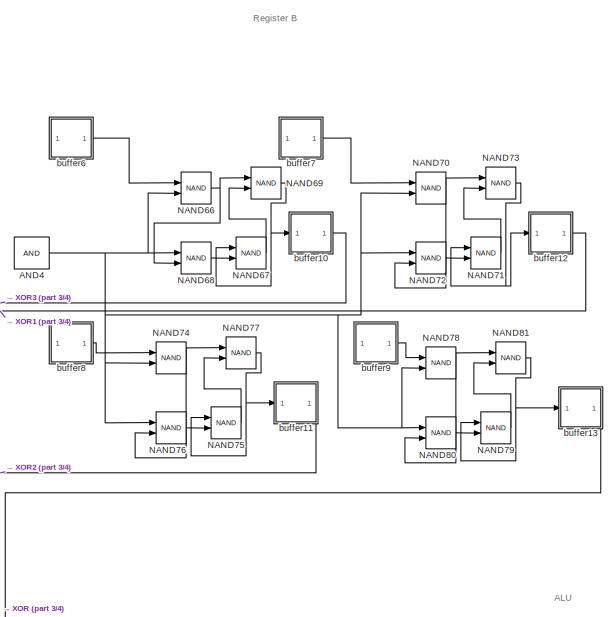
[diagram: root canvas - part 1/4, top right region]
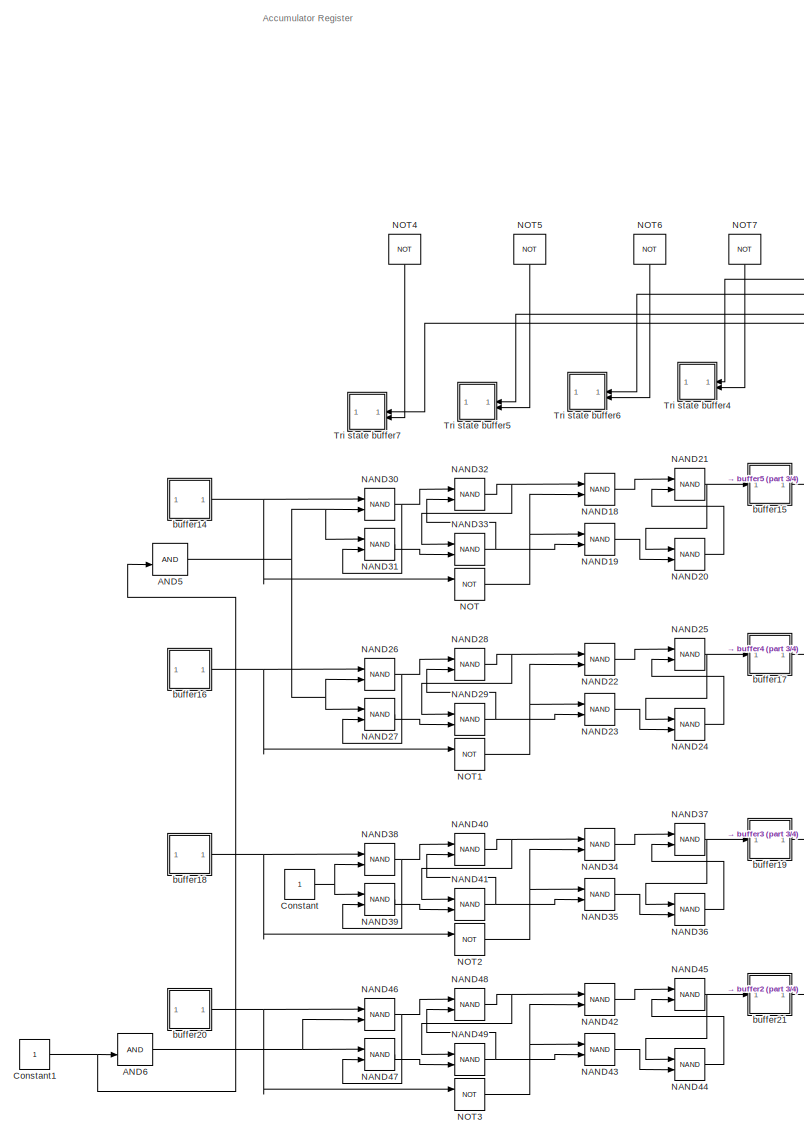
[diagram: root canvas - part 2/4, middle left region]
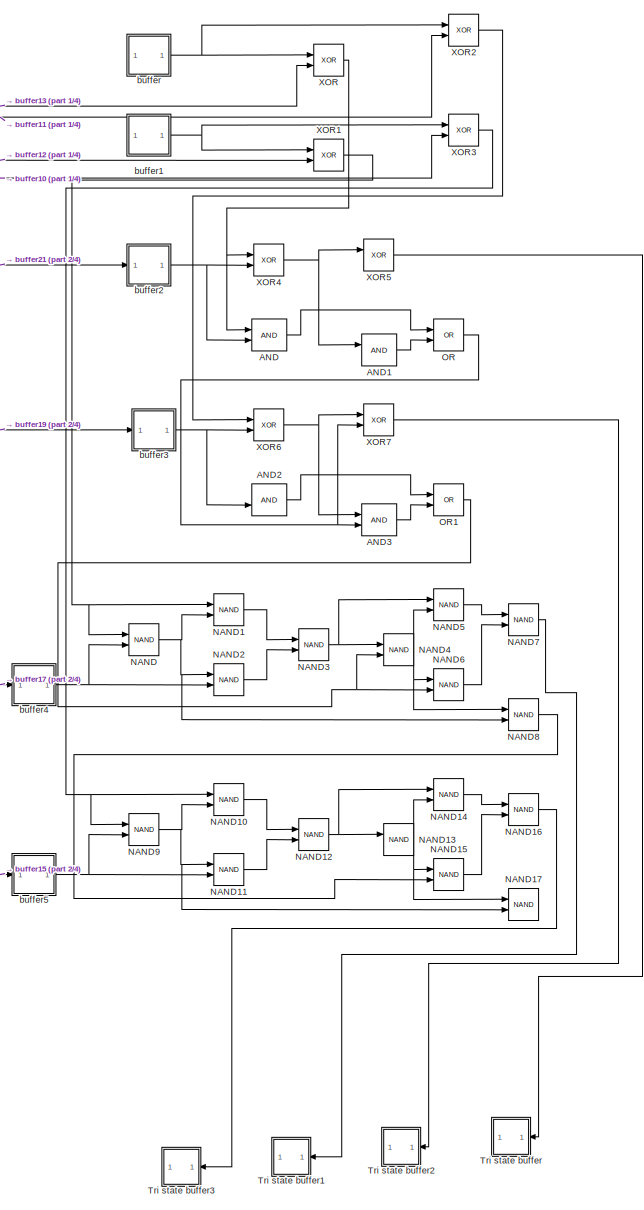
[diagram: root canvas - part 3/4, bottom right region]
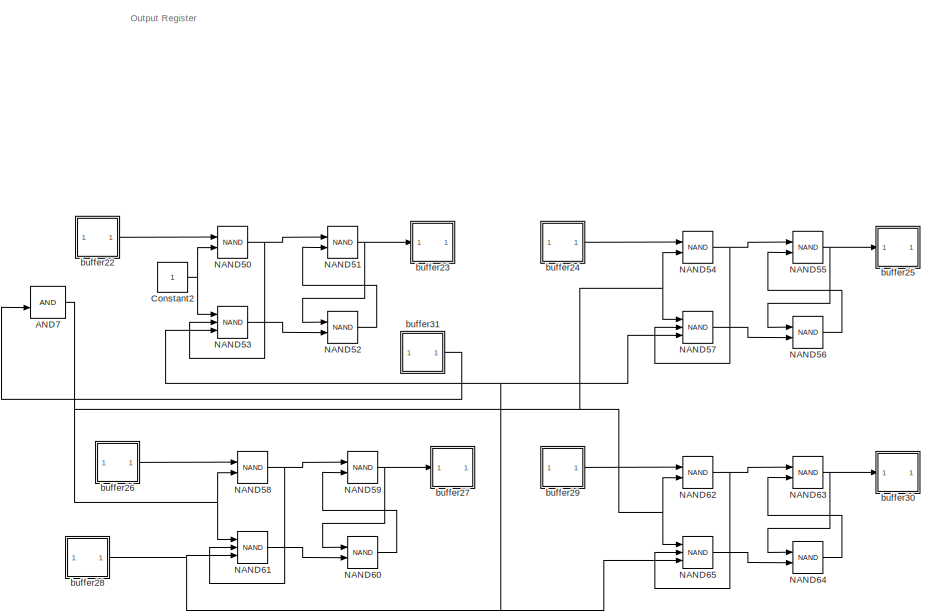
[diagram: root canvas - part 4/4, bottom left region]
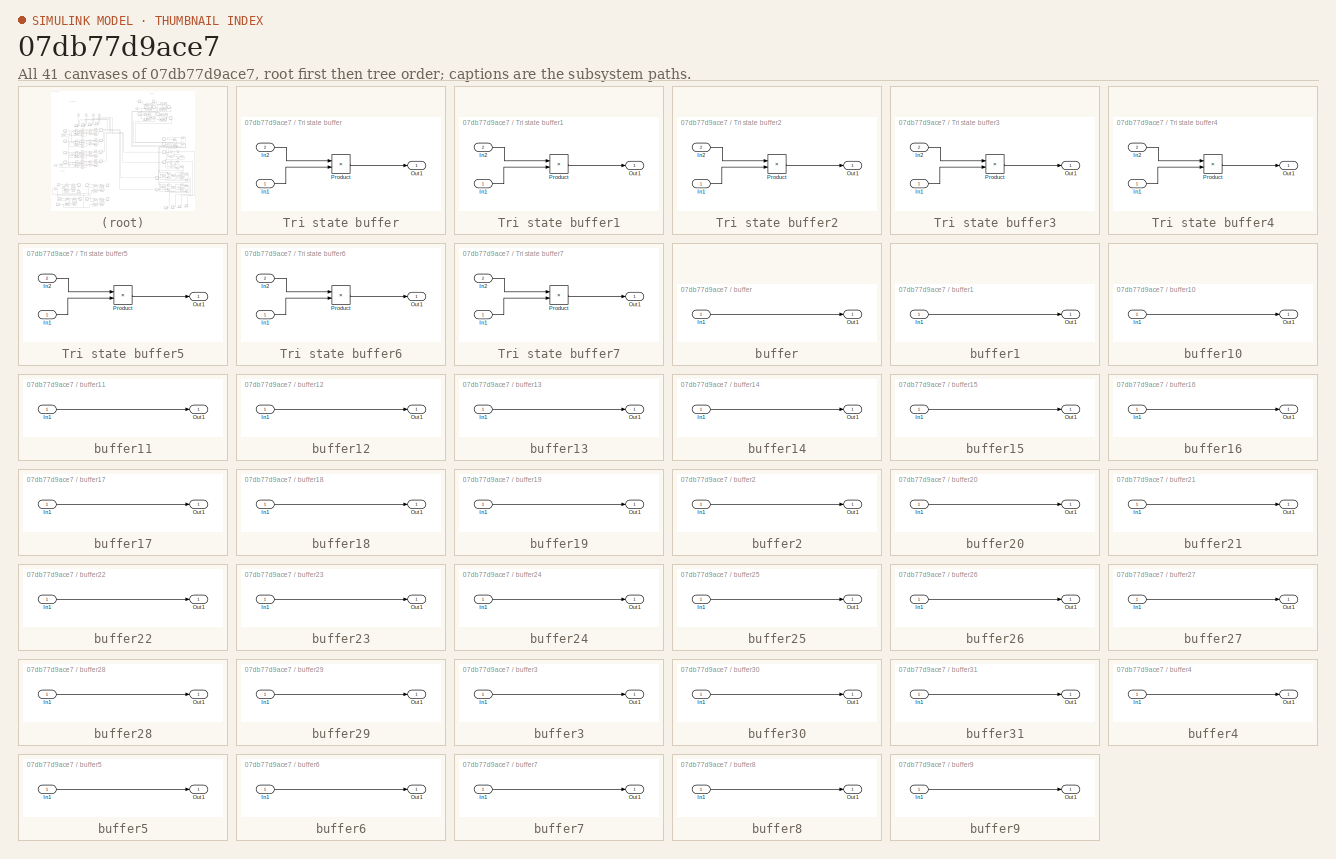
[diagram: thumbnail index - all 41 canvases of the model, root first then tree order]
MODEL slx_07db77d9ace7
KIND model
CONFIG AbsTol = auto
CONFIG EnableMultiTasking = off
CONFIG FixedStep = auto
CONFIG MaxStep = auto
CONFIG MinStep = auto
CONFIG RelTol = 1e-3
CONFIG SampleTimeConstraint = Unconstrained
CONFIG SolverName = VariableStepAuto
CONFIG StartTime = 0.0
CONFIG StopTime = 10.0
BLOCK [Logic] AND
  AllPortsSameDT = off
  IconShape = distinctive
  OutDataTypeStr = boolean
BLOCK [Logic] AND1
  AllPortsSameDT = off
  IconShape = distinctive
  OutDataTypeStr = boolean
BLOCK [Logic] AND2
  AllPortsSameDT = off
  IconShape = distinctive
  OutDataTypeStr = boolean
BLOCK [Logic] AND3
  AllPortsSameDT = off
  IconShape = distinctive
  OutDataTypeStr = boolean
BLOCK [Logic] AND4
  AllPortsSameDT = off
  IconShape = distinctive
  OutDataTypeStr = boolean
BLOCK [Logic] AND5
  AllPortsSameDT = off
  IconShape = distinctive
  OutDataTypeStr = boolean
BLOCK [Logic] AND6
  AllPortsSameDT = off
  IconShape = distinctive
  OutDataTypeStr = boolean
BLOCK [Logic] AND7
  AllPortsSameDT = off
  IconShape = distinctive
  OutDataTypeStr = boolean
BLOCK [Constant] Constant
BLOCK [Constant] Constant1
BLOCK [Constant] Constant2
BLOCK [Logic] NAND
  AllPortsSameDT = off
  IconShape = distinctive
  Operator = NAND
  OutDataTypeStr = boolean
BLOCK [Logic] NAND1
  AllPortsSameDT = off
  IconShape = distinctive
  Operator = NAND
  OutDataTypeStr = boolean
BLOCK [Logic] NAND10
  AllPortsSameDT = off
  IconShape = distinctive
  Operator = NAND
  OutDataTypeStr = boolean
BLOCK [Logic] NAND11
  AllPortsSameDT = off
  IconShape = distinctive
  Operator = NAND
  OutDataTypeStr = boolean
BLOCK [Logic] NAND12
  AllPortsSameDT = off
  IconShape = distinctive
  Operator = NAND
  OutDataTypeStr = boolean
BLOCK [Logic] NAND13
  AllPortsSameDT = off
  IconShape = distinctive
  Operator = NAND
  OutDataTypeStr = boolean
BLOCK [Logic] NAND14
  AllPortsSameDT = off
  IconShape = distinctive
  Operator = NAND
  OutDataTypeStr = boolean
BLOCK [Logic] NAND15
  AllPortsSameDT = off
  IconShape = distinctive
  Operator = NAND
  OutDataTypeStr = boolean
BLOCK [Logic] NAND16
  AllPortsSameDT = off
  IconShape = distinctive
  Operator = NAND
  OutDataTypeStr = boolean
BLOCK [Logic] NAND17
  AllPortsSameDT = off
  IconShape = distinctive
  Operator = NAND
  OutDataTypeStr = boolean
BLOCK [Logic] NAND18
  AllPortsSameDT = off
  IconShape = distinctive
  Operator = NAND
  OutDataTypeStr = boolean
BLOCK [Logic] NAND19
  AllPortsSameDT = off
  IconShape = distinctive
  Operator = NAND
  OutDataTypeStr = boolean
BLOCK [Logic] NAND2
  AllPortsSameDT = off
  IconShape = distinctive
  Operator = NAND
  OutDataTypeStr = boolean
BLOCK [Logic] NAND20
  AllPortsSameDT = off
  IconShape = distinctive
  Operator = NAND
  OutDataTypeStr = boolean
BLOCK [Logic] NAND21
  AllPortsSameDT = off
  IconShape = distinctive
  Operator = NAND
  OutDataTypeStr = boolean
BLOCK [Logic] NAND22
  AllPortsSameDT = off
  IconShape = distinctive
  Operator = NAND
  OutDataTypeStr = boolean
BLOCK [Logic] NAND23
  AllPortsSameDT = off
  IconShape = distinctive
  Operator = NAND
  OutDataTypeStr = boolean
BLOCK [Logic] NAND24
  AllPortsSameDT = off
  IconShape = distinctive
  Operator = NAND
  OutDataTypeStr = boolean
BLOCK [Logic] NAND25
  AllPortsSameDT = off
  IconShape = distinctive
  Operator = NAND
  OutDataTypeStr = boolean
BLOCK [Logic] NAND26
  AllPortsSameDT = off
  IconShape = distinctive
  Operator = NAND
  OutDataTypeStr = boolean
BLOCK [Logic] NAND27
  AllPortsSameDT = off
  IconShape = distinctive
  Operator = NAND
  OutDataTypeStr = boolean
BLOCK [Logic] NAND28
  AllPortsSameDT = off
  IconShape = distinctive
  Operator = NAND
  OutDataTypeStr = boolean
BLOCK [Logic] NAND29
  AllPortsSameDT = off
  IconShape = distinctive
  Operator = NAND
  OutDataTypeStr = boolean
BLOCK [Logic] NAND3
  AllPortsSameDT = off
  IconShape = distinctive
  Operator = NAND
  OutDataTypeStr = boolean
BLOCK [Logic] NAND30
  AllPortsSameDT = off
  IconShape = distinctive
  Operator = NAND
  OutDataTypeStr = boolean
BLOCK [Logic] NAND31
  AllPortsSameDT = off
  IconShape = distinctive
  Operator = NAND
  OutDataTypeStr = boolean
BLOCK [Logic] NAND32
  AllPortsSameDT = off
  IconShape = distinctive
  Operator = NAND
  OutDataTypeStr = boolean
BLOCK [Logic] NAND33
  AllPortsSameDT = off
  IconShape = distinctive
  Operator = NAND
  OutDataTypeStr = boolean
BLOCK [Logic] NAND34
  AllPortsSameDT = off
  IconShape = distinctive
  Operator = NAND
  OutDataTypeStr = boolean
BLOCK [Logic] NAND35
  AllPortsSameDT = off
  IconShape = distinctive
  Operator = NAND
  OutDataTypeStr = boolean
BLOCK [Logic] NAND36
  AllPortsSameDT = off
  IconShape = distinctive
  Operator = NAND
  OutDataTypeStr = boolean
BLOCK [Logic] NAND37
  AllPortsSameDT = off
  IconShape = distinctive
  Operator = NAND
  OutDataTypeStr = boolean
BLOCK [Logic] NAND38
  AllPortsSameDT = off
  IconShape = distinctive
  Operator = NAND
  OutDataTypeStr = boolean
BLOCK [Logic] NAND39
  AllPortsSameDT = off
  IconShape = distinctive
  Operator = NAND
  OutDataTypeStr = boolean
BLOCK [Logic] NAND4
  AllPortsSameDT = off
  IconShape = distinctive
  Operator = NAND
  OutDataTypeStr = boolean
BLOCK [Logic] NAND40
  AllPortsSameDT = off
  IconShape = distinctive
  Operator = NAND
  OutDataTypeStr = boolean
BLOCK [Logic] NAND41
  AllPortsSameDT = off
  IconShape = distinctive
  Operator = NAND
  OutDataTypeStr = boolean
BLOCK [Logic] NAND42
  AllPortsSameDT = off
  IconShape = distinctive
  Operator = NAND
  OutDataTypeStr = boolean
BLOCK [Logic] NAND43
  AllPortsSameDT = off
  IconShape = distinctive
  Operator = NAND
  OutDataTypeStr = boolean
BLOCK [Logic] NAND44
  AllPortsSameDT = off
  IconShape = distinctive
  Operator = NAND
  OutDataTypeStr = boolean
BLOCK [Logic] NAND45
  AllPortsSameDT = off
  IconShape = distinctive
  Operator = NAND
  OutDataTypeStr = boolean
BLOCK [Logic] NAND46
  AllPortsSameDT = off
  IconShape = distinctive
  Operator = NAND
  OutDataTypeStr = boolean
BLOCK [Logic] NAND47
  AllPortsSameDT = off
  IconShape = distinctive
  Operator = NAND
  OutDataTypeStr = boolean
BLOCK [Logic] NAND48
  AllPortsSameDT = off
  IconShape = distinctive
  Operator = NAND
  OutDataTypeStr = boolean
BLOCK [Logic] NAND49
  AllPortsSameDT = off
  IconShape = distinctive
  Operator = NAND
  OutDataTypeStr = boolean
BLOCK [Logic] NAND5
  AllPortsSameDT = off
  IconShape = distinctive
  Operator = NAND
  OutDataTypeStr = boolean
BLOCK [Logic] NAND50
  AllPortsSameDT = off
  IconShape = distinctive
  Operator = NAND
  OutDataTypeStr = boolean
BLOCK [Logic] NAND51
  AllPortsSameDT = off
  IconShape = distinctive
  Operator = NAND
  OutDataTypeStr = boolean
BLOCK [Logic] NAND52
  AllPortsSameDT = off
  IconShape = distinctive
  Operator = NAND
  OutDataTypeStr = boolean
BLOCK [Logic] NAND53
  AllPortsSameDT = off
  IconShape = distinctive
  Inputs = 3
  Operator = NAND
  OutDataTypeStr = boolean
BLOCK [Logic] NAND54
  AllPortsSameDT = off
  IconShape = distinctive
  Operator = NAND
  OutDataTypeStr = boolean
BLOCK [Logic] NAND55
  AllPortsSameDT = off
  IconShape = distinctive
  Operator = NAND
  OutDataTypeStr = boolean
BLOCK [Logic] NAND56
  AllPortsSameDT = off
  IconShape = distinctive
  Operator = NAND
  OutDataTypeStr = boolean
BLOCK [Logic] NAND57
  AllPortsSameDT = off
  IconShape = distinctive
  Inputs = 3
  Operator = NAND
  OutDataTypeStr = boolean
BLOCK [Logic] NAND58
  AllPortsSameDT = off
  IconShape = distinctive
  Operator = NAND
  OutDataTypeStr = boolean
BLOCK [Logic] NAND59
  AllPortsSameDT = off
  IconShape = distinctive
  Operator = NAND
  OutDataTypeStr = boolean
BLOCK [Logic] NAND6
  AllPortsSameDT = off
  IconShape = distinctive
  Operator = NAND
  OutDataTypeStr = boolean
BLOCK [Logic] NAND60
  AllPortsSameDT = off
  IconShape = distinctive
  Operator = NAND
  OutDataTypeStr = boolean
BLOCK [Logic] NAND61
  AllPortsSameDT = off
  IconShape = distinctive
  Inputs = 3
  Operator = NAND
  OutDataTypeStr = boolean
BLOCK [Logic] NAND62
  AllPortsSameDT = off
  IconShape = distinctive
  Operator = NAND
  OutDataTypeStr = boolean
BLOCK [Logic] NAND63
  AllPortsSameDT = off
  IconShape = distinctive
  Operator = NAND
  OutDataTypeStr = boolean
BLOCK [Logic] NAND64
  AllPortsSameDT = off
  IconShape = distinctive
  Operator = NAND
  OutDataTypeStr = boolean
BLOCK [Logic] NAND65
  AllPortsSameDT = off
  IconShape = distinctive
  Inputs = 3
  Operator = NAND
  OutDataTypeStr = boolean
BLOCK [Logic] NAND66
  AllPortsSameDT = off
  IconShape = distinctive
  Operator = NAND
  OutDataTypeStr = boolean
BLOCK [Logic] NAND67
  AllPortsSameDT = off
  IconShape = distinctive
  Operator = NAND
  OutDataTypeStr = boolean
BLOCK [Logic] NAND68
  AllPortsSameDT = off
  IconShape = distinctive
  Operator = NAND
  OutDataTypeStr = boolean
BLOCK [Logic] NAND69
  AllPortsSameDT = off
  IconShape = distinctive
  Operator = NAND
  OutDataTypeStr = boolean
BLOCK [Logic] NAND7
  AllPortsSameDT = off
  IconShape = distinctive
  Operator = NAND
  OutDataTypeStr = boolean
BLOCK [Logic] NAND70
  AllPortsSameDT = off
  IconShape = distinctive
  Operator = NAND
  OutDataTypeStr = boolean
BLOCK [Logic] NAND71
  AllPortsSameDT = off
  IconShape = distinctive
  Operator = NAND
  OutDataTypeStr = boolean
BLOCK [Logic] NAND72
  AllPortsSameDT = off
  IconShape = distinctive
  Operator = NAND
  OutDataTypeStr = boolean
BLOCK [Logic] NAND73
  AllPortsSameDT = off
  IconShape = distinctive
  Operator = NAND
  OutDataTypeStr = boolean
BLOCK [Logic] NAND74
  AllPortsSameDT = off
  IconShape = distinctive
  Operator = NAND
  OutDataTypeStr = boolean
BLOCK [Logic] NAND75
  AllPortsSameDT = off
  IconShape = distinctive
  Operator = NAND
  OutDataTypeStr = boolean
BLOCK [Logic] NAND76
  AllPortsSameDT = off
  IconShape = distinctive
  Operator = NAND
  OutDataTypeStr = boolean
BLOCK [Logic] NAND77
  AllPortsSameDT = off
  IconShape = distinctive
  Operator = NAND
  OutDataTypeStr = boolean
BLOCK [Logic] NAND78
  AllPortsSameDT = off
  IconShape = distinctive
  Operator = NAND
  OutDataTypeStr = boolean
BLOCK [Logic] NAND79
  AllPortsSameDT = off
  IconShape = distinctive
  Operator = NAND
  OutDataTypeStr = boolean
BLOCK [Logic] NAND8
  AllPortsSameDT = off
  IconShape = distinctive
  Operator = NAND
  OutDataTypeStr = boolean
BLOCK [Logic] NAND80
  AllPortsSameDT = off
  IconShape = distinctive
  Operator = NAND
  OutDataTypeStr = boolean
BLOCK [Logic] NAND81
  AllPortsSameDT = off
  IconShape = distinctive
  Operator = NAND
  OutDataTypeStr = boolean
BLOCK [Logic] NAND9
  AllPortsSameDT = off
  IconShape = distinctive
  Operator = NAND
  OutDataTypeStr = boolean
BLOCK [Logic] NOT
  AllPortsSameDT = off
  IconShape = distinctive
  Operator = NOT
  OutDataTypeStr = boolean
BLOCK [Logic] NOT1
  AllPortsSameDT = off
  IconShape = distinctive
  Operator = NOT
  OutDataTypeStr = boolean
BLOCK [Logic] NOT2
  AllPortsSameDT = off
  IconShape = distinctive
  Operator = NOT
  OutDataTypeStr = boolean
BLOCK [Logic] NOT3
  AllPortsSameDT = off
  IconShape = distinctive
  Operator = NOT
  OutDataTypeStr = boolean
BLOCK [Logic] NOT4
  AllPortsSameDT = off
  IconShape = distinctive
  NameLocation = left
  Operator = NOT
  OutDataTypeStr = boolean
BLOCK [Logic] NOT5
  AllPortsSameDT = off
  IconShape = distinctive
  NameLocation = left
  Operator = NOT
  OutDataTypeStr = boolean
BLOCK [Logic] NOT6
  AllPortsSameDT = off
  IconShape = distinctive
  NameLocation = left
  Operator = NOT
  OutDataTypeStr = boolean
BLOCK [Logic] NOT7
  AllPortsSameDT = off
  IconShape = distinctive
  NameLocation = left
  Operator = NOT
  OutDataTypeStr = boolean
BLOCK [Logic] OR
  AllPortsSameDT = off
  IconShape = distinctive
  Operator = OR
  OutDataTypeStr = boolean
BLOCK [Logic] OR1
  AllPortsSameDT = off
  IconShape = distinctive
  Operator = OR
  OutDataTypeStr = boolean
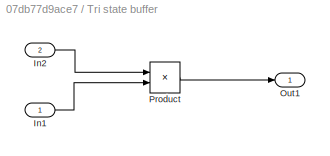
BLOCK [SubSystem] Tri state buffer
  NameLocation = top
BLOCK [Inport] Tri state buffer/In1
BLOCK [Inport] Tri state buffer/In2
  Port = 2
BLOCK [Outport] Tri state buffer/Out1
BLOCK [Product] Tri state buffer/Product
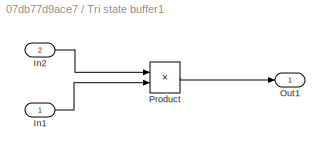
BLOCK [SubSystem] Tri state buffer1
  NameLocation = top
BLOCK [Inport] Tri state buffer1/In1
BLOCK [Inport] Tri state buffer1/In2
  Port = 2
BLOCK [Outport] Tri state buffer1/Out1
BLOCK [Product] Tri state buffer1/Product
BLOCK [SubSystem] Tri state buffer2
  NameLocation = top
BLOCK [Inport] Tri state buffer2/In1
BLOCK [Inport] Tri state buffer2/In2
  Port = 2
BLOCK [Outport] Tri state buffer2/Out1
BLOCK [Product] Tri state buffer2/Product
BLOCK [SubSystem] Tri state buffer3
  NameLocation = top
BLOCK [Inport] Tri state buffer3/In1
BLOCK [Inport] Tri state buffer3/In2
  Port = 2
BLOCK [Outport] Tri state buffer3/Out1
BLOCK [Product] Tri state buffer3/Product
BLOCK [SubSystem] Tri state buffer4
  NameLocation = top
BLOCK [Inport] Tri state buffer4/In1
BLOCK [Inport] Tri state buffer4/In2
  Port = 2
BLOCK [Outport] Tri state buffer4/Out1
BLOCK [Product] Tri state buffer4/Product
BLOCK [SubSystem] Tri state buffer5
  NameLocation = top
BLOCK [Inport] Tri state buffer5/In1
BLOCK [Inport] Tri state buffer5/In2
  Port = 2
BLOCK [Outport] Tri state buffer5/Out1
BLOCK [Product] Tri state buffer5/Product
BLOCK [SubSystem] Tri state buffer6
  NameLocation = top
BLOCK [Inport] Tri state buffer6/In1
BLOCK [Inport] Tri state buffer6/In2
  Port = 2
BLOCK [Outport] Tri state buffer6/Out1
BLOCK [Product] Tri state buffer6/Product
BLOCK [SubSystem] Tri state buffer7
  NameLocation = top
BLOCK [Inport] Tri state buffer7/In1
BLOCK [Inport] Tri state buffer7/In2
  Port = 2
BLOCK [Outport] Tri state buffer7/Out1
BLOCK [Product] Tri state buffer7/Product
BLOCK [Logic] XOR
  AllPortsSameDT = off
  IconShape = distinctive
  Operator = XOR
  OutDataTypeStr = boolean
BLOCK [Logic] XOR1
  AllPortsSameDT = off
  IconShape = distinctive
  Operator = XOR
  OutDataTypeStr = boolean
BLOCK [Logic] XOR2
  AllPortsSameDT = off
  IconShape = distinctive
  Operator = XOR
  OutDataTypeStr = boolean
BLOCK [Logic] XOR3
  AllPortsSameDT = off
  IconShape = distinctive
  Operator = XOR
  OutDataTypeStr = boolean
BLOCK [Logic] XOR4
  AllPortsSameDT = off
  IconShape = distinctive
  Operator = XOR
  OutDataTypeStr = boolean
BLOCK [Logic] XOR5
  AllPortsSameDT = off
  IconShape = distinctive
  Operator = XOR
  OutDataTypeStr = boolean
BLOCK [Logic] XOR6
  AllPortsSameDT = off
  IconShape = distinctive
  Operator = XOR
  OutDataTypeStr = boolean
BLOCK [Logic] XOR7
  AllPortsSameDT = off
  IconShape = distinctive
  Operator = XOR
  OutDataTypeStr = boolean
BLOCK [SubSystem] buffer
BLOCK [Inport] buffer/In1
BLOCK [Outport] buffer/Out1
BLOCK [SubSystem] buffer1
BLOCK [Inport] buffer1/In1
BLOCK [Outport] buffer1/Out1
BLOCK [SubSystem] buffer10
BLOCK [Inport] buffer10/In1
BLOCK [Outport] buffer10/Out1
BLOCK [SubSystem] buffer11
BLOCK [Inport] buffer11/In1
BLOCK [Outport] buffer11/Out1
BLOCK [SubSystem] buffer12
BLOCK [Inport] buffer12/In1
BLOCK [Outport] buffer12/Out1
BLOCK [SubSystem] buffer13
BLOCK [Inport] buffer13/In1
BLOCK [Outport] buffer13/Out1
BLOCK [SubSystem] buffer14
BLOCK [Inport] buffer14/In1
BLOCK [Outport] buffer14/Out1
BLOCK [SubSystem] buffer15
BLOCK [Inport] buffer15/In1
BLOCK [Outport] buffer15/Out1
BLOCK [SubSystem] buffer16
BLOCK [Inport] buffer16/In1
BLOCK [Outport] buffer16/Out1
BLOCK [SubSystem] buffer17
BLOCK [Inport] buffer17/In1
BLOCK [Outport] buffer17/Out1
BLOCK [SubSystem] buffer18
BLOCK [Inport] buffer18/In1
BLOCK [Outport] buffer18/Out1
BLOCK [SubSystem] buffer19
BLOCK [Inport] buffer19/In1
BLOCK [Outport] buffer19/Out1
BLOCK [SubSystem] buffer2
BLOCK [Inport] buffer2/In1
BLOCK [Outport] buffer2/Out1
BLOCK [SubSystem] buffer20
BLOCK [Inport] buffer20/In1
BLOCK [Outport] buffer20/Out1
BLOCK [SubSystem] buffer21
BLOCK [Inport] buffer21/In1
BLOCK [Outport] buffer21/Out1
BLOCK [SubSystem] buffer22
BLOCK [Inport] buffer22/In1
BLOCK [Outport] buffer22/Out1
BLOCK [SubSystem] buffer23
BLOCK [Inport] buffer23/In1
BLOCK [Outport] buffer23/Out1
BLOCK [SubSystem] buffer24
BLOCK [Inport] buffer24/In1
BLOCK [Outport] buffer24/Out1
BLOCK [SubSystem] buffer25
BLOCK [Inport] buffer25/In1
BLOCK [Outport] buffer25/Out1
BLOCK [SubSystem] buffer26
BLOCK [Inport] buffer26/In1
BLOCK [Outport] buffer26/Out1
BLOCK [SubSystem] buffer27
BLOCK [Inport] buffer27/In1
BLOCK [Outport] buffer27/Out1
BLOCK [SubSystem] buffer28
BLOCK [Inport] buffer28/In1
BLOCK [Outport] buffer28/Out1
BLOCK [SubSystem] buffer29
BLOCK [Inport] buffer29/In1
BLOCK [Outport] buffer29/Out1
BLOCK [SubSystem] buffer3
BLOCK [Inport] buffer3/In1
BLOCK [Outport] buffer3/Out1
BLOCK [SubSystem] buffer30
BLOCK [Inport] buffer30/In1
BLOCK [Outport] buffer30/Out1
BLOCK [SubSystem] buffer31
BLOCK [Inport] buffer31/In1
BLOCK [Outport] buffer31/Out1
BLOCK [SubSystem] buffer4
BLOCK [Inport] buffer4/In1
BLOCK [Outport] buffer4/Out1
BLOCK [SubSystem] buffer5
BLOCK [Inport] buffer5/In1
BLOCK [Outport] buffer5/Out1
BLOCK [SubSystem] buffer6
BLOCK [Inport] buffer6/In1
BLOCK [Outport] buffer6/Out1
BLOCK [SubSystem] buffer7
BLOCK [Inport] buffer7/In1
BLOCK [Outport] buffer7/Out1
BLOCK [SubSystem] buffer8
BLOCK [Inport] buffer8/In1
BLOCK [Outport] buffer8/Out1
BLOCK [SubSystem] buffer9
BLOCK [Inport] buffer9/In1
BLOCK [Outport] buffer9/Out1
ANNOTATION (root): ALU
ANNOTATION (root): Accumulator Register
ANNOTATION (root): Output Register
ANNOTATION (root): Register B
LINE AND1:1 -> OR:2
LINE AND2:1 -> OR1:1
LINE AND3:1 -> OR1:2
NET AND4:1 -> NAND66:2, NAND68:1, NAND70:2, NAND72:1, NAND74:2, NAND76:1, NAND78:2, NAND80:1
NET AND5:1 -> NAND26:2, NAND27:1, NAND30:2, NAND31:1
NET AND6:1 -> NAND46:2, NAND47:1
NET AND7:1 -> NAND54:2, NAND57:1, NAND58:2, NAND61:1, NAND62:2, NAND65:1
LINE AND:1 -> OR:1
NET Constant1:1 -> AND5:2, AND6:2
NET Constant2:1 -> NAND50:2, NAND53:1
NET Constant:1 -> NAND38:2, NAND39:1
LINE NAND10:1 -> NAND12:1
LINE NAND11:1 -> NAND12:2
NET NAND12:1 -> NAND13:1, NAND14:1
NET NAND13:1 -> NAND14:2, NAND15:1, NAND17:1
LINE NAND14:1 -> NAND16:1
LINE NAND15:1 -> NAND16:2
LINE NAND16:1 -> Tri state buffer3:1
LINE NAND18:1 -> NAND21:1
LINE NAND19:1 -> NAND20:2
LINE NAND1:1 -> NAND3:1
LINE NAND20:1 -> NAND21:2
NET NAND21:1 -> NAND20:1, buffer15:1
LINE NAND22:1 -> NAND25:1
LINE NAND23:1 -> NAND24:2
LINE NAND24:1 -> NAND25:2
NET NAND25:1 -> NAND24:1, buffer17:1
NET NAND26:1 -> NAND27:2, NAND28:1
LINE NAND27:1 -> NAND29:2
NET NAND28:1 -> NAND22:1, NAND29:1
NET NAND29:1 -> NAND23:2, NAND28:2
LINE NAND2:1 -> NAND3:2
NET NAND30:1 -> NAND31:2, NAND32:1
LINE NAND31:1 -> NAND33:2
NET NAND32:1 -> NAND18:1, NAND33:1
NET NAND33:1 -> NAND19:2, NAND32:2
LINE NAND34:1 -> NAND37:1
LINE NAND35:1 -> NAND36:2
LINE NAND36:1 -> NAND37:2
NET NAND37:1 -> NAND36:1, buffer19:1
NET NAND38:1 -> NAND39:2, NAND40:1
LINE NAND39:1 -> NAND41:2
NET NAND3:1 -> NAND4:1, NAND5:1
NET NAND40:1 -> NAND34:1, NAND41:1
NET NAND41:1 -> NAND35:2, NAND40:2
LINE NAND42:1 -> NAND45:1
LINE NAND43:1 -> NAND44:2
LINE NAND44:1 -> NAND45:2
NET NAND45:1 -> NAND44:1, buffer21:1
NET NAND46:1 -> NAND47:2, NAND48:1
LINE NAND47:1 -> NAND49:2
NET NAND48:1 -> NAND42:1, NAND49:1
NET NAND49:1 -> NAND43:2, NAND48:2
NET NAND4:1 -> NAND5:2, NAND6:1, NAND8:1
NET NAND50:1 -> NAND51:1, NAND53:2
NET NAND51:1 -> NAND52:1, buffer23:1
LINE NAND52:1 -> NAND51:2
LINE NAND53:1 -> NAND52:2
NET NAND54:1 -> NAND55:1, NAND57:2
NET NAND55:1 -> NAND56:1, buffer25:1
LINE NAND56:1 -> NAND55:2
LINE NAND57:1 -> NAND56:2
NET NAND58:1 -> NAND59:1, NAND61:2
NET NAND59:1 -> NAND60:1, buffer27:1
LINE NAND5:1 -> NAND7:1
LINE NAND60:1 -> NAND59:2
LINE NAND61:1 -> NAND60:2
NET NAND62:1 -> NAND63:1, NAND65:2
NET NAND63:1 -> NAND64:1, buffer30:1
LINE NAND64:1 -> NAND63:2
LINE NAND65:1 -> NAND64:2
NET NAND66:1 -> NAND68:2, NAND69:1
LINE NAND67:1 -> NAND69:2
LINE NAND68:1 -> NAND67:2
NET NAND69:1 -> NAND67:1, buffer10:1
LINE NAND6:1 -> NAND7:2
NET NAND70:1 -> NAND72:2, NAND73:1
LINE NAND71:1 -> NAND73:2
LINE NAND72:1 -> NAND71:2
NET NAND73:1 -> NAND71:1, buffer12:1
NET NAND74:1 -> NAND76:2, NAND77:1
LINE NAND75:1 -> NAND77:2
LINE NAND76:1 -> NAND75:2
NET NAND77:1 -> NAND75:1, buffer11:1
NET NAND78:1 -> NAND80:2, NAND81:1
LINE NAND79:1 -> NAND81:2
LINE NAND7:1 -> Tri state buffer1:1
LINE NAND80:1 -> NAND79:2
NET NAND81:1 -> NAND79:1, buffer13:1
LINE NAND8:1 -> NAND15:2
NET NAND9:1 -> NAND10:2, NAND11:1, NAND17:2
NET NAND:1 -> NAND1:2, NAND2:1, NAND8:2
NET NOT1:1 -> NAND22:2, NAND23:1
NET NOT2:1 -> NAND34:2, NAND35:1
NET NOT3:1 -> NAND42:2, NAND43:1
LINE NOT4:1 -> Tri state buffer7:2
LINE NOT5:1 -> Tri state buffer5:2
LINE NOT6:1 -> Tri state buffer6:2
LINE NOT7:1 -> Tri state buffer4:2
NET NOT:1 -> NAND18:2, NAND19:1
NET OR1:1 -> NAND4:2, NAND6:2
NET OR:1 -> AND3:2, XOR7:2
LINE Tri state buffer/In1:1 -> Tri state buffer/Product:2
LINE Tri state buffer/In2:1 -> Tri state buffer/Product:1
LINE Tri state buffer/Product:1 -> Tri state buffer/Out1:1
LINE Tri state buffer1/In1:1 -> Tri state buffer1/Product:2
LINE Tri state buffer1/In2:1 -> Tri state buffer1/Product:1
LINE Tri state buffer1/Product:1 -> Tri state buffer1/Out1:1
LINE Tri state buffer2/In1:1 -> Tri state buffer2/Product:2
LINE Tri state buffer2/In2:1 -> Tri state buffer2/Product:1
LINE Tri state buffer2/Product:1 -> Tri state buffer2/Out1:1
LINE Tri state buffer3/In1:1 -> Tri state buffer3/Product:2
LINE Tri state buffer3/In2:1 -> Tri state buffer3/Product:1
LINE Tri state buffer3/Product:1 -> Tri state buffer3/Out1:1
LINE Tri state buffer4/In1:1 -> Tri state buffer4/Product:2
LINE Tri state buffer4/In2:1 -> Tri state buffer4/Product:1
LINE Tri state buffer4/Product:1 -> Tri state buffer4/Out1:1
LINE Tri state buffer5/In1:1 -> Tri state buffer5/Product:2
LINE Tri state buffer5/In2:1 -> Tri state buffer5/Product:1
LINE Tri state buffer5/Product:1 -> Tri state buffer5/Out1:1
LINE Tri state buffer6/In1:1 -> Tri state buffer6/Product:2
LINE Tri state buffer6/In2:1 -> Tri state buffer6/Product:1
LINE Tri state buffer6/Product:1 -> Tri state buffer6/Out1:1
LINE Tri state buffer7/In1:1 -> Tri state buffer7/Product:2
LINE Tri state buffer7/In2:1 -> Tri state buffer7/Product:1
LINE Tri state buffer7/Product:1 -> Tri state buffer7/Out1:1
NET XOR1:1 -> NAND1:1, NAND:1
LINE XOR2:1 -> XOR6:1
NET XOR3:1 -> NAND10:1, NAND9:1
NET XOR4:1 -> AND1:1, XOR5:1
LINE XOR5:1 -> Tri state buffer:1
NET XOR6:1 -> AND3:1, XOR7:1
LINE XOR7:1 -> Tri state buffer2:1
NET XOR:1 -> AND:1, XOR4:1
LINE buffer/In1:1 -> buffer/Out1:1
LINE buffer1/In1:1 -> buffer1/Out1:1
LINE buffer10/In1:1 -> buffer10/Out1:1
LINE buffer10:1 -> XOR3:2
LINE buffer11/In1:1 -> buffer11/Out1:1
LINE buffer11:1 -> XOR2:2
LINE buffer12/In1:1 -> buffer12/Out1:1
LINE buffer12:1 -> XOR1:2
LINE buffer13/In1:1 -> buffer13/Out1:1
LINE buffer13:1 -> XOR:2
LINE buffer14/In1:1 -> buffer14/Out1:1
NET buffer14:1 -> NAND30:1, NOT:1
LINE buffer15/In1:1 -> buffer15/Out1:1
NET buffer15:1 -> Tri state buffer7:1, buffer5:1
LINE buffer16/In1:1 -> buffer16/Out1:1
NET buffer16:1 -> NAND26:1, NOT1:1
LINE buffer17/In1:1 -> buffer17/Out1:1
NET buffer17:1 -> Tri state buffer5:1, buffer4:1
LINE buffer18/In1:1 -> buffer18/Out1:1
NET buffer18:1 -> NAND38:1, NOT2:1
LINE buffer19/In1:1 -> buffer19/Out1:1
NET buffer19:1 -> Tri state buffer6:1, buffer3:1
NET buffer1:1 -> XOR1:1, XOR3:1
LINE buffer2/In1:1 -> buffer2/Out1:1
LINE buffer20/In1:1 -> buffer20/Out1:1
NET buffer20:1 -> NAND46:1, NOT3:1
LINE buffer21/In1:1 -> buffer21/Out1:1
NET buffer21:1 -> Tri state buffer4:1, buffer2:1
LINE buffer22/In1:1 -> buffer22/Out1:1
LINE buffer22:1 -> NAND50:1
LINE buffer23/In1:1 -> buffer23/Out1:1
LINE buffer24/In1:1 -> buffer24/Out1:1
LINE buffer24:1 -> NAND54:1
LINE buffer25/In1:1 -> buffer25/Out1:1
LINE buffer26/In1:1 -> buffer26/Out1:1
LINE buffer26:1 -> NAND58:1
LINE buffer27/In1:1 -> buffer27/Out1:1
LINE buffer28/In1:1 -> buffer28/Out1:1
NET buffer28:1 -> NAND53:3, NAND57:3, NAND61:3, NAND65:3
LINE buffer29/In1:1 -> buffer29/Out1:1
LINE buffer29:1 -> NAND62:1
NET buffer2:1 -> AND:2, XOR4:2
LINE buffer3/In1:1 -> buffer3/Out1:1
LINE buffer30/In1:1 -> buffer30/Out1:1
LINE buffer31/In1:1 -> buffer31/Out1:1
LINE buffer31:1 -> AND7:2
NET buffer3:1 -> AND2:2, XOR6:2
LINE buffer4/In1:1 -> buffer4/Out1:1
NET buffer4:1 -> NAND2:2, NAND:2
LINE buffer5/In1:1 -> buffer5/Out1:1
NET buffer5:1 -> NAND11:2, NAND9:2
LINE buffer6/In1:1 -> buffer6/Out1:1
LINE buffer6:1 -> NAND66:1
LINE buffer7/In1:1 -> buffer7/Out1:1
LINE buffer7:1 -> NAND70:1
LINE buffer8/In1:1 -> buffer8/Out1:1
LINE buffer8:1 -> NAND74:1
LINE buffer9/In1:1 -> buffer9/Out1:1
LINE buffer9:1 -> NAND78:1
NET buffer:1 -> XOR2:1, XOR:1
note: NET lines group one-source signal fan-out (src -> all destinations, sorted); 1:1 wires keep LINE
